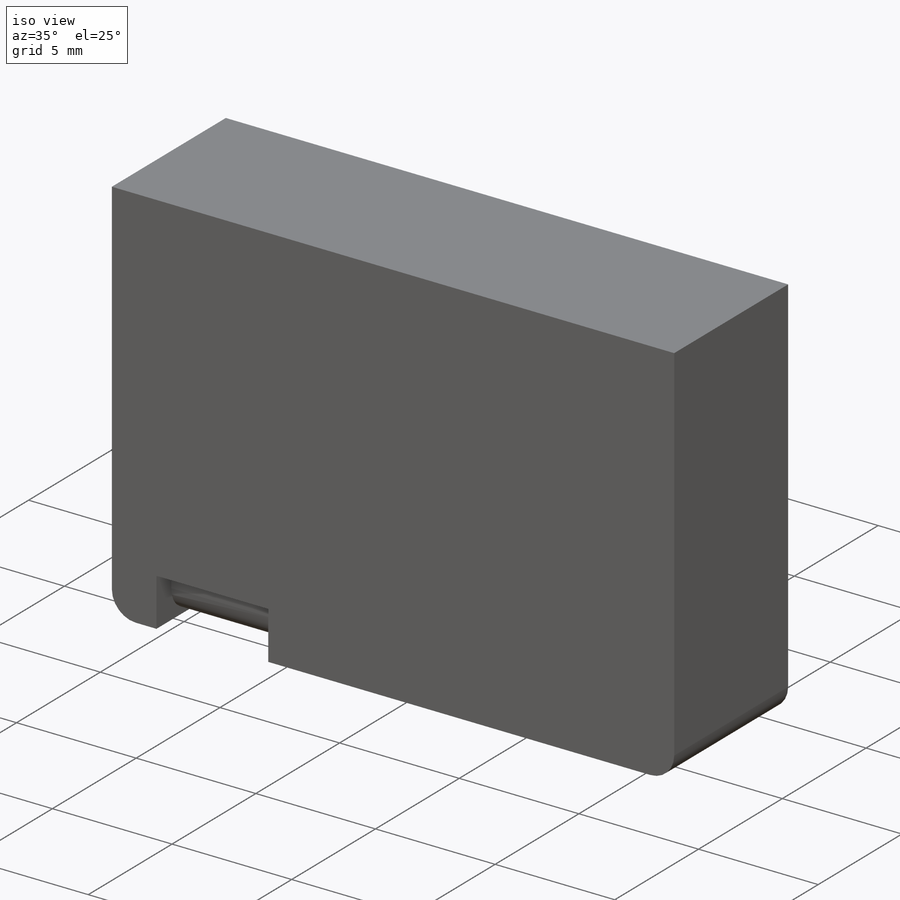
[diagram: iso view]
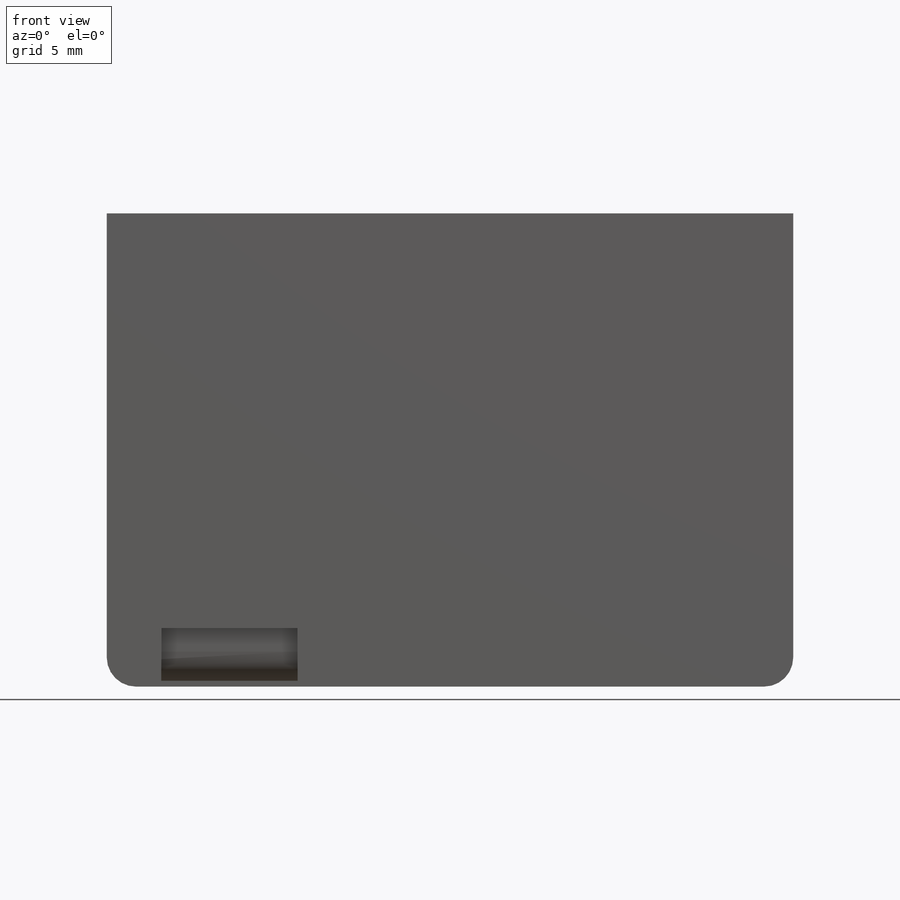
[diagram: front view]
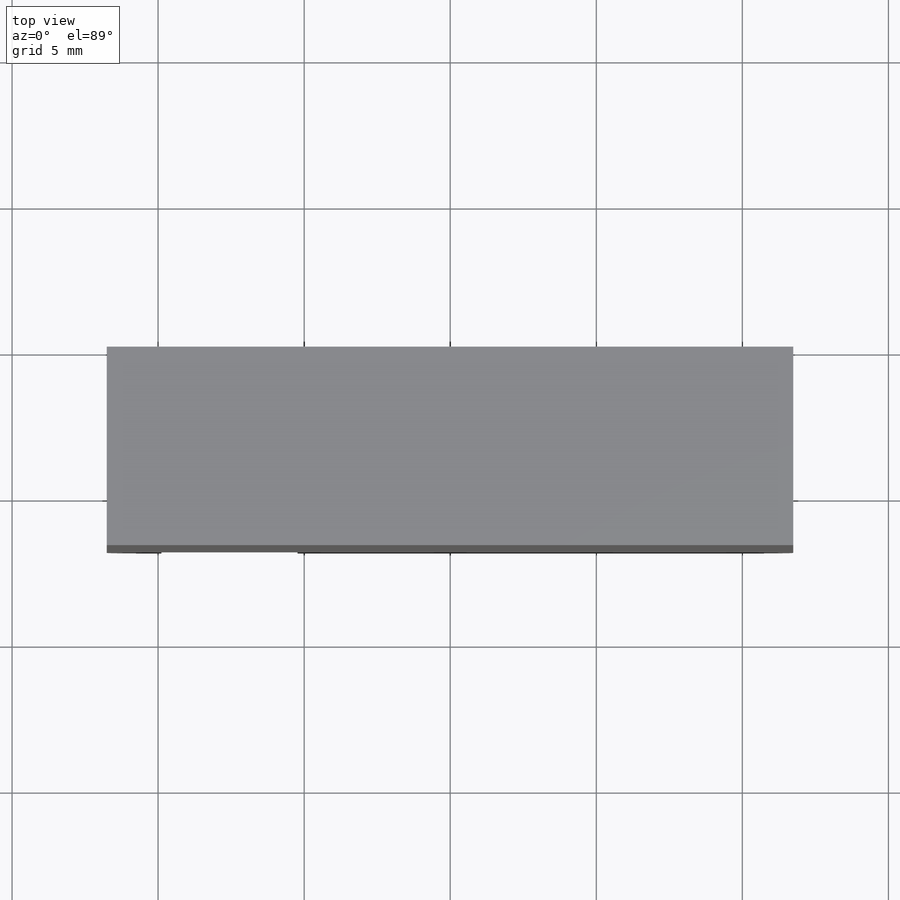
[diagram: top view]
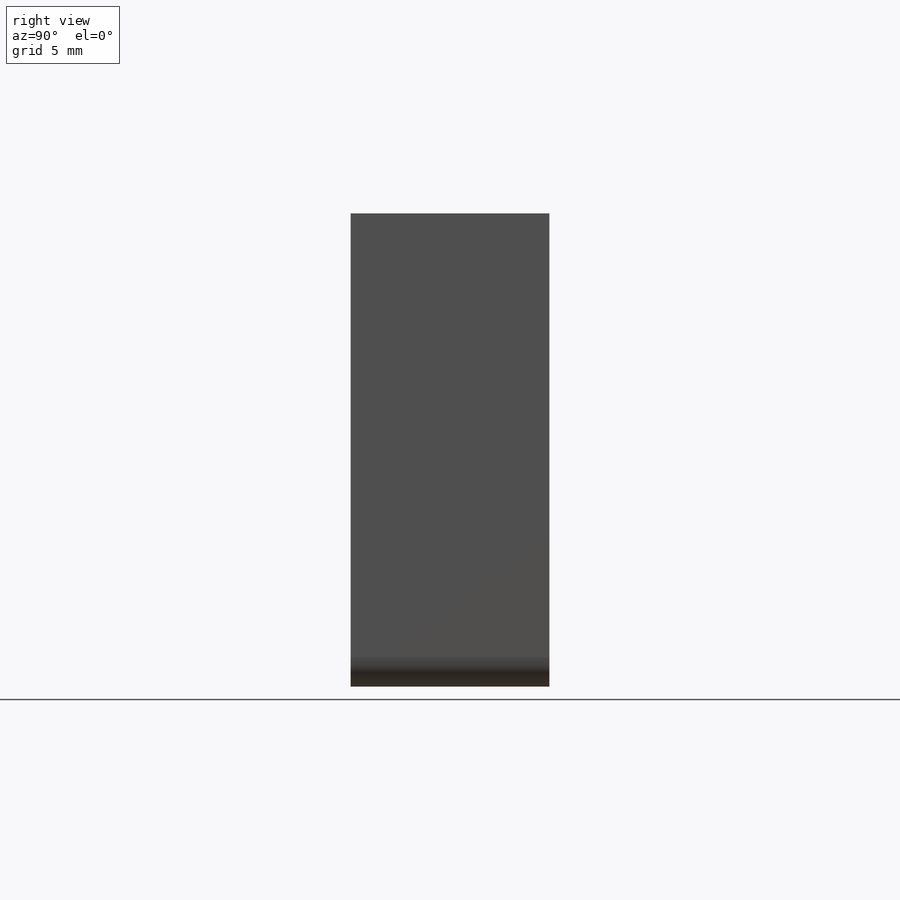
[diagram: right view]
SOLIDWORKS PART (.sldprt)
format: sldprt  version: not decoded by parser v0  size: 187,904 bytes
history: native  units: mm
features: sketch x4, extrude x3, fillet x3, material x1, cut_extrude x1 (+13 scaffold rows collapsed)
feature tree (25):
  scaffold x13  (default folders/planes/origin — collapsed)
  material  "Material <not specified>"
  sketch  "Sketch1"  dims[D1=23.5mm D2=16.2mm]
  extrude  "Boss-Extrude1"  Depth=6.8mm
  fillet  "Fillet1"  Radius=1mm
  sketch  "Sketch2"
  cut_extrude  "Cut-Extrude1"  Depth=2mm
  sketch  "Sketch3"
  extrude  "Boss-Extrude2"  Depth=1.8mm
  fillet  "Fillet2"  Radius=1mm
  fillet  "Fillet3"  Radius=2mm
  sketch  "Sketch4"
  extrude  "Boss-Extrude3"  Depth=1.8mm
decode coverage: 8 of 11 modeling features carry decoded parameters
note: suppression state not decoded; provenance and decode notes live in map.json
